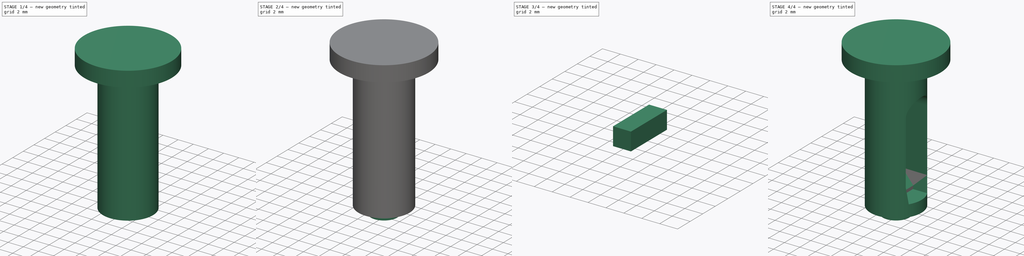
[diagram: build sequence overview — one tinted view per stage of 4, left to right]
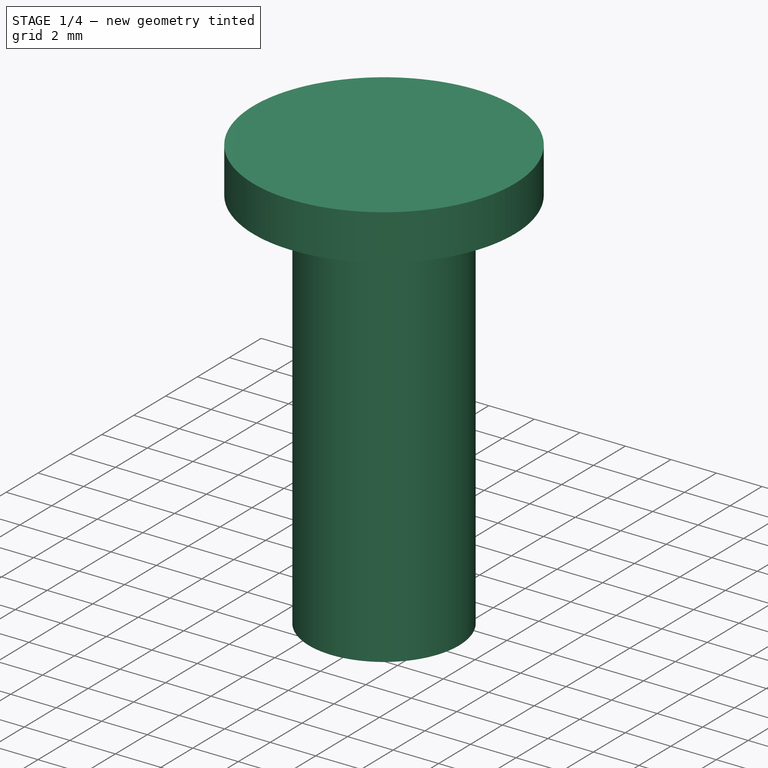
[diagram: stage 1 of 4 — iso view after this stage's code; geometry added in this stage tinted green]
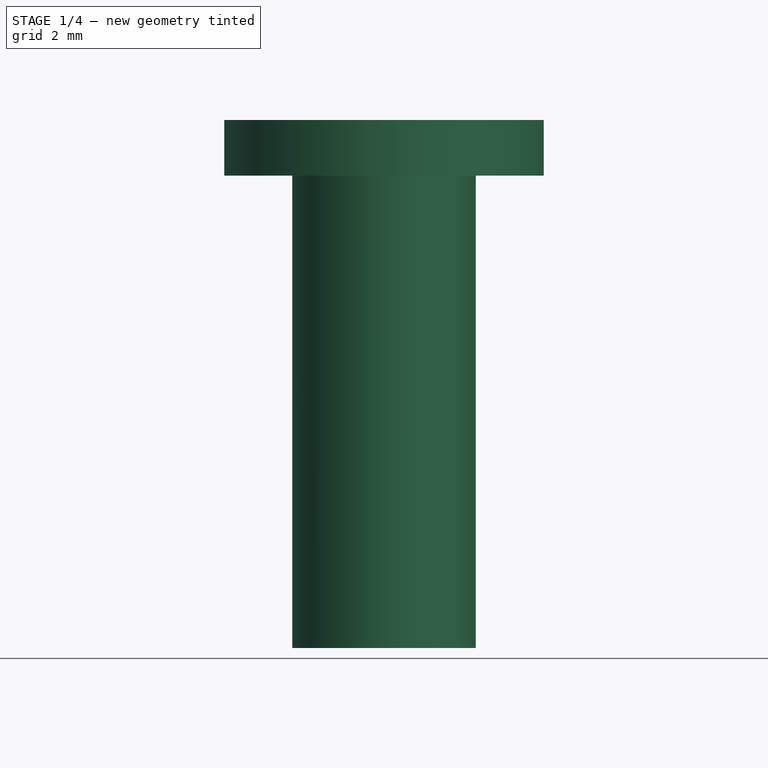
[diagram: stage 1 of 4 — front view after this stage's code; geometry added in this stage tinted green]
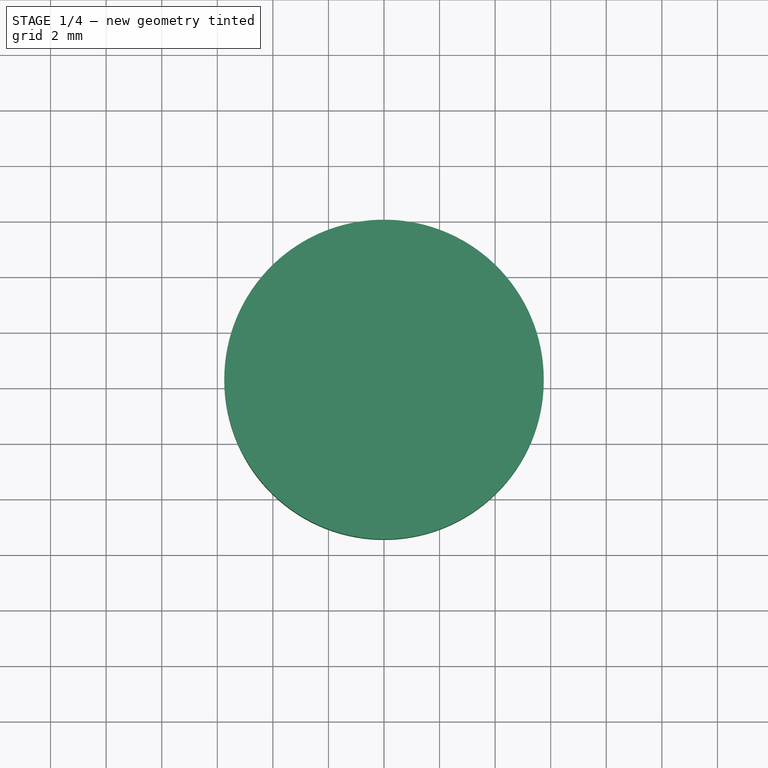
[diagram: stage 1 of 4 — top view after this stage's code; geometry added in this stage tinted green]
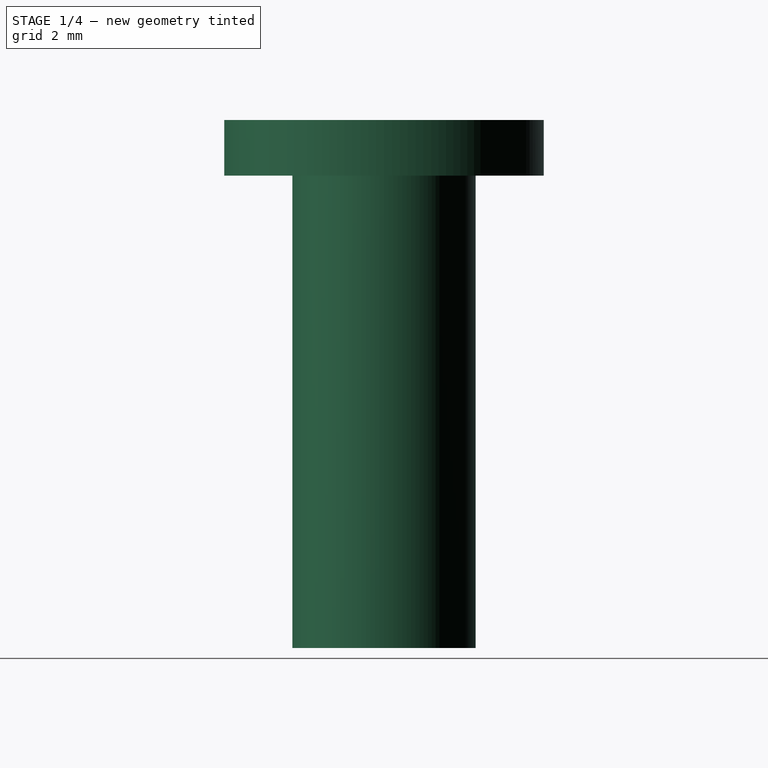
[diagram: stage 1 of 4 — right view after this stage's code; geometry added in this stage tinted green]
FCSTD DOCUMENT  (FreeCAD 0.19RUnknown)
Label: butto
License: All rights reserved
LicenseURL: http://en.wikipedia.org/wiki/All_rights_reserved
objects: Sketcher::SketchObject×7, Part::Extrusion×5, Part::MultiFuse×2, Part::Cut×1, Part::Chamfer×1
note: 16 computed .brp shape members not serialized (recipe doc carries the construction recipe); baked Part::Feature solids carry a one-line shape summary decoded from their .brp

FEATURE [Sketcher::SketchObject] Sketch001  label="slice2_e001"
  FullyConstrained = true
  MapMode = 5
  Placement = pos=(0,0,1) rot=(0,0,1;0rad)
  sketch-geometry (1):
    g0: Circle CenterX=0 CenterY=0 CenterZ=0 NormalX=0 NormalY=0 NormalZ=1 AngleXU=0 Radius=3.3
  constraints (2):
    c: Coincident(g0,g-1)
    c: Diameter(g0) = 6.6
FEATURE [Part::Extrusion] Extrude001  label="slice2_e"
  Base = -> Sketch001
  Dir = (0,0,1)
  DirMode = 2
  FaceMakerClass = Part::FaceMakerBullseye
  LengthFwd = 17
  LengthRev = 0
  Solid = true
  Symmetric = false
FEATURE [Sketcher::SketchObject] Sketch002
  FullyConstrained = true
  MapMode = 5
  Placement = pos=(0,0,18) rot=(0,0,1;0rad)
  sketch-geometry (1):
    g0: Circle CenterX=0 CenterY=0 CenterZ=0 NormalX=0 NormalY=0 NormalZ=1 AngleXU=0 Radius=5.75
  constraints (2):
    c: Coincident(g0,g-1)
    c: Diameter(g0) = 11.5
FEATURE [Part::Extrusion] Extrude002  label="slice3_e"
  Base = -> Sketch002
  Dir = (0,0,1)
  DirMode = 2
  FaceMakerClass = Part::FaceMakerBullseye
  LengthFwd = 2
  LengthRev = 0
  Solid = true
  Symmetric = false
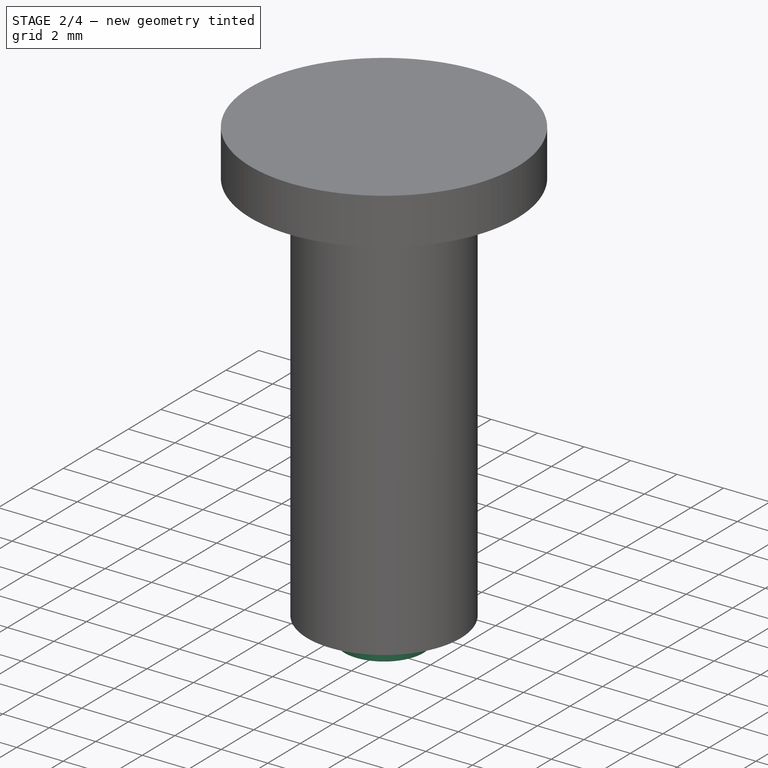
[diagram: stage 2 of 4 — iso view after this stage's code; geometry added in this stage tinted green]
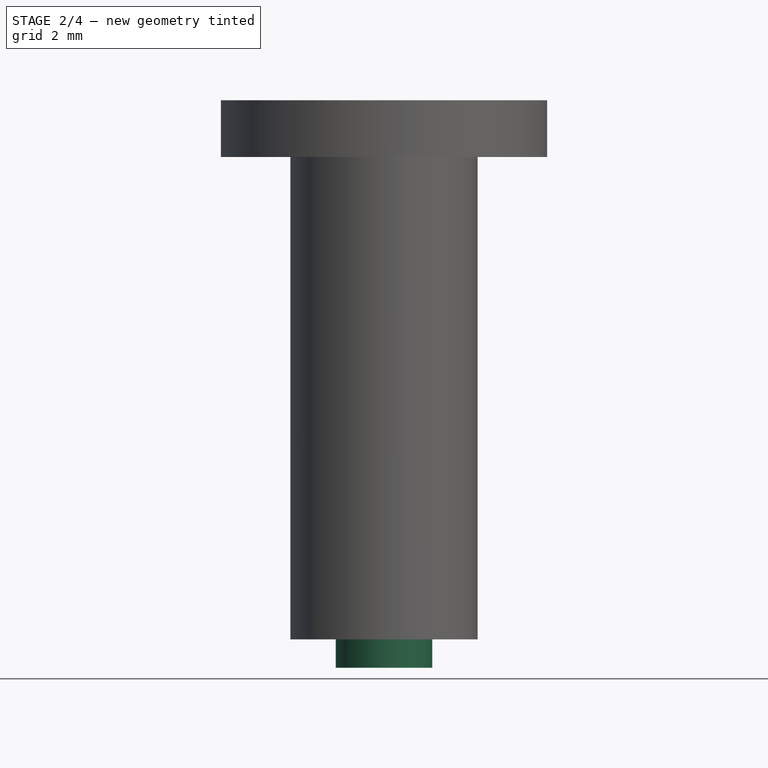
[diagram: stage 2 of 4 — front view after this stage's code; geometry added in this stage tinted green]
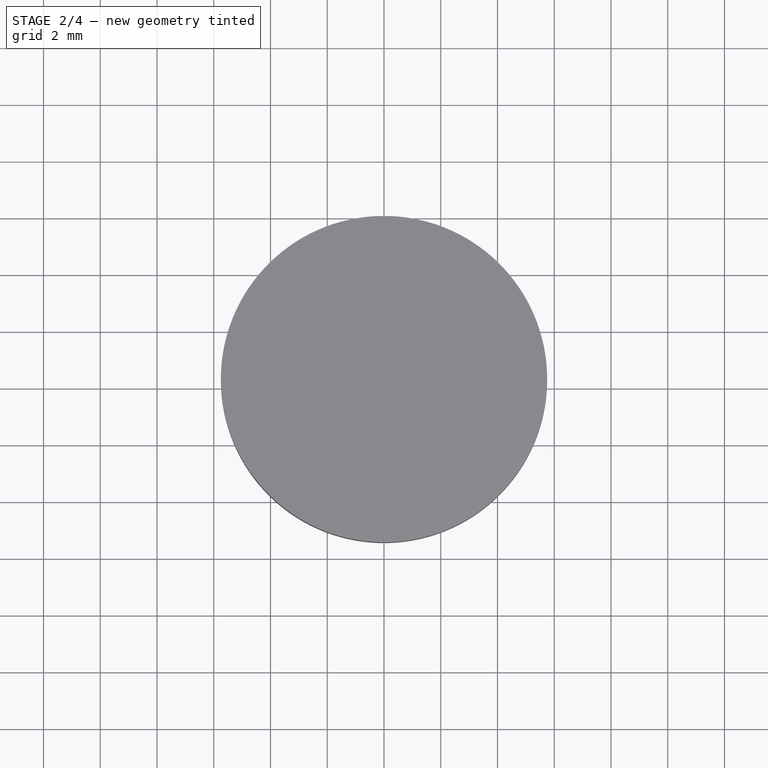
[diagram: stage 2 of 4 — top view after this stage's code; geometry added in this stage tinted green]
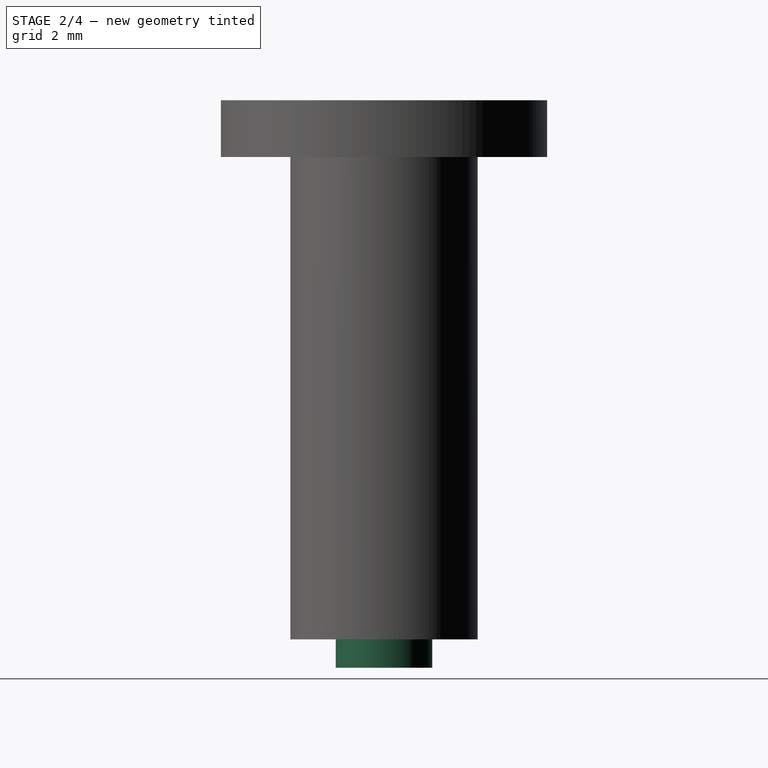
[diagram: stage 2 of 4 — right view after this stage's code; geometry added in this stage tinted green]
FEATURE [Sketcher::SketchObject] Sketch  label="slice1_s"
  FullyConstrained = true
  sketch-geometry (1):
    g0: Circle CenterX=0 CenterY=0 CenterZ=0 NormalX=0 NormalY=0 NormalZ=1 AngleXU=0 Radius=1.7
  constraints (2):
    c: Coincident(g0,g-1)
    c: Diameter(g0) = 3.4
FEATURE [Part::Extrusion] Extrude  label="slice1_e"
  Base = -> Sketch
  Dir = (0,0,1)
  DirMode = 2
  FaceMakerClass = Part::FaceMakerBullseye
  LengthFwd = 1
  LengthRev = 0
  Solid = true
  Symmetric = false
FEATURE [Sketcher::SketchObject] Sketch004  label="lock"
  FullyConstrained = false
  Placement = pos=(0,0,0) rot=(0.57735,0.57735,0.57735;2.0944rad)
  sketch-geometry (4):
    g0: LineSegment StartX=-2.06647 StartY=3.81631 StartZ=0 EndX=2.07519 EndY=3.81631 EndZ=0
    g1: LineSegment StartX=2.07519 StartY=3.81631 StartZ=0 EndX=2.07519 EndY=1.12959 EndZ=0
    g2: LineSegment StartX=2.07519 StartY=1.12959 StartZ=0 EndX=-2.06647 EndY=1.12959 EndZ=0
    g3: LineSegment StartX=-2.06647 StartY=1.12959 StartZ=0 EndX=-2.06647 EndY=3.81631 EndZ=0
  constraints (8):
    c: Coincident(g0,g1)
    c: Coincident(g1,g2)
    c: Coincident(g2,g3)
    c: Coincident(g3,g0)
    c: Horizontal(g0)
    c: Horizontal(g2)
    c: Vertical(g1)
    c: Vertical(g3)
FEATURE [Sketcher::SketchObject] Sketch005  label="dessin"
  FullyConstrained = false
  MapMode = 5
  Placement = pos=(0,0,20) rot=(0,0,1;0rad)
  sketch-geometry (20):
    g0: ArcOfCircle CenterX=0 CenterY=0 CenterZ=0 NormalX=0 NormalY=0 NormalZ=1 AngleXU=0 Radius=4.71434 StartAngle=0 EndAngle=3.14159
    g1-g9: Circle x9 (B-spline internal-alignment scaffolding for g10; pole/knot coordinates omitted)
    g10: BSplineCurve PolesCount=9 KnotsCount=7 Degree=3 IsPeriodic=0
    g11-g17: GeomPoint x7 (B-spline internal-alignment scaffolding for g10; pole/knot coordinates omitted)
    g18: Circle CenterX=-1.81786 CenterY=2.45526 CenterZ=0 NormalX=0 NormalY=0 NormalZ=1 AngleXU=0 Radius=0.65
    g19: Circle CenterX=1.81786 CenterY=2.45526 CenterZ=0 NormalX=0 NormalY=0 NormalZ=1 AngleXU=0 Radius=0.65
  constraints (14):
    c: Coincident(g0,g-1)
    c: PointOnObject(g0,g-1)
    c: PointOnObject(g0,g-1)
    c: Coincident(g10,g0)
    c: Weight(g1) = 1
    c: Equal(g1, g2-g5) x4
    c: PointOnObject(g5,g-2)
    c: Equal(g1, g6-g9) x4
    c: Coincident(g10,g0)
    c: InternalAlignment(g1-g9 -> g10) x9
    c: InternalAlignment(g11-g17 -> g10) x7
    c: Symmetric(g18,g19,g-2)
    c: Diameter(g18) = 1.3
    c: Diameter(g19) = 1.3
FEATURE [Part::MultiFuse] Fusion  label="barrel_u"
  Shapes = -> [Extrude,Extrude001,Extrude002]
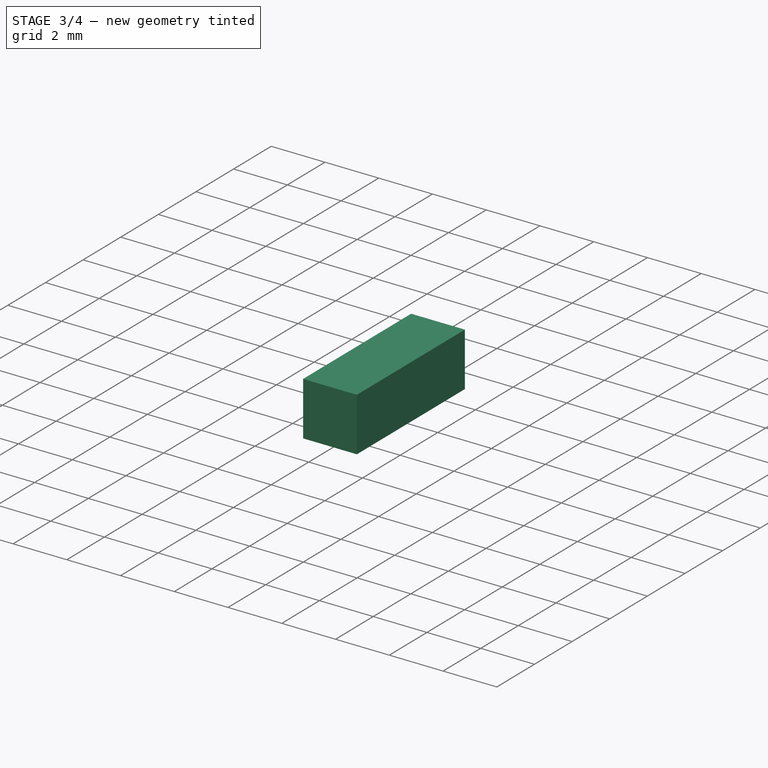
[diagram: stage 3 of 4 — iso view after this stage's code; geometry added in this stage tinted green]
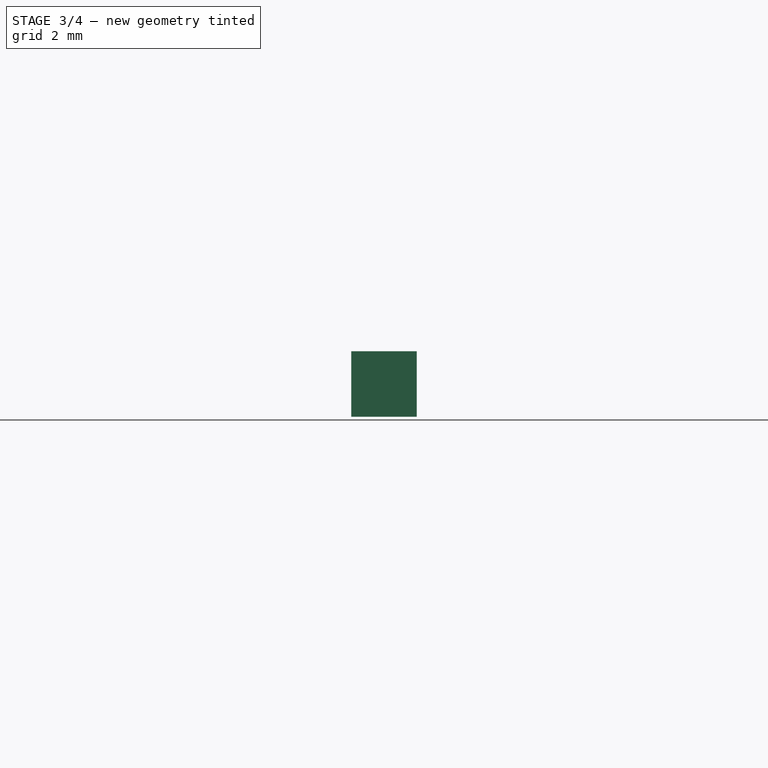
[diagram: stage 3 of 4 — front view after this stage's code; geometry added in this stage tinted green]
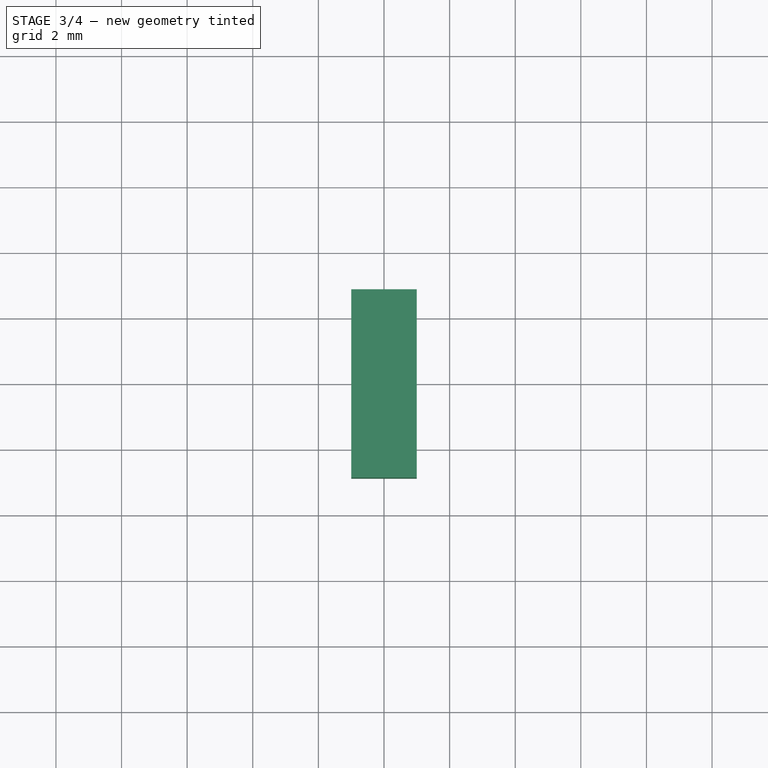
[diagram: stage 3 of 4 — top view after this stage's code; geometry added in this stage tinted green]
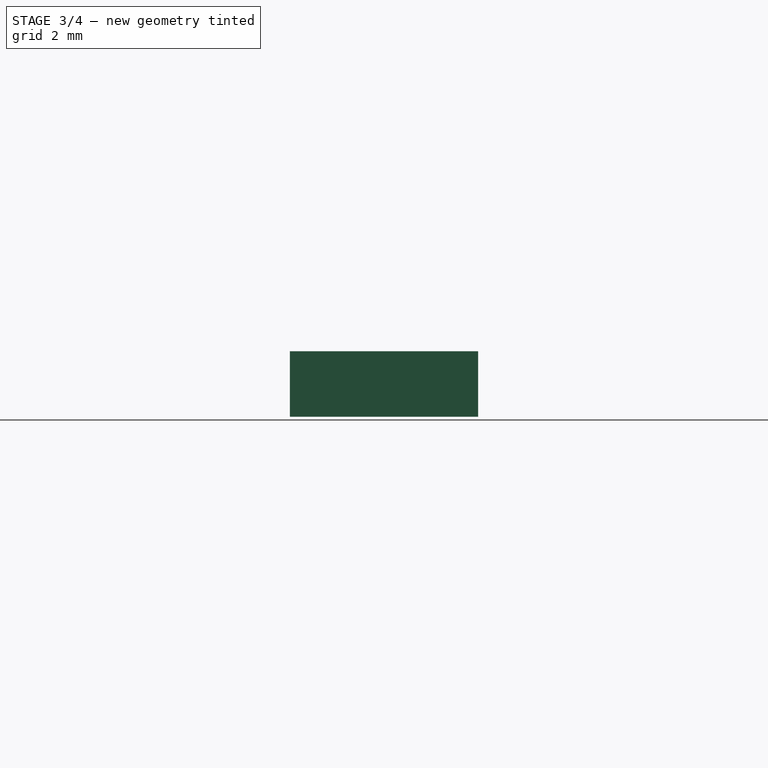
[diagram: stage 3 of 4 — right view after this stage's code; geometry added in this stage tinted green]
FEATURE [Sketcher::SketchObject] Sketch003  label="hole"
  ExternalGeometry = -> [Extrude002]
  FullyConstrained = false
  Placement = pos=(0,0,0) rot=(0.57735,0.57735,0.57735;2.0944rad)
  sketch-geometry (13):
    g0: LineSegment StartX=0 StartY=1.5 StartZ=0 EndX=0.0017548 EndY=2.5 EndZ=0
    g1: LineSegment StartX=0 StartY=2.5 StartZ=0 EndX=0 EndY=8.5 EndZ=0
    g2: LineSegment StartX=0 StartY=8.5 StartZ=0 EndX=0 EndY=14.5 EndZ=0
    g3: ArcOfCircle CenterX=0 CenterY=4.47504 CenterZ=0 NormalX=0 NormalY=0 NormalZ=1 AngleXU=0 Radius=1.97504 StartAngle=3.13527 EndAngle=6.27686
    g4: LineSegment StartX=-1.975 StartY=8.5 StartZ=0 EndX=-1.975 EndY=4.48753 EndZ=0
    g5: LineSegment StartX=1.975 StartY=8.5 StartZ=0 EndX=1.975 EndY=4.46255 EndZ=0
    g6: ArcOfCircle CenterX=0 CenterY=12.525 CenterZ=0 NormalX=0 NormalY=0 NormalZ=1 AngleXU=0 Radius=1.975 StartAngle=-6.39e-14 EndAngle=3.14159
    g7: LineSegment StartX=-1.975 StartY=12.525 StartZ=0 EndX=-1.975 EndY=8.5 EndZ=0
    g8: LineSegment StartX=1.975 StartY=12.525 StartZ=0 EndX=1.975 EndY=8.5 EndZ=0
    g9: LineSegment StartX=-1.975 StartY=4.48753 StartZ=0 EndX=-1.69567 EndY=2.5 EndZ=0
    g10: LineSegment StartX=-1.69567 StartY=2.5 StartZ=0 EndX=0.0017548 EndY=2.5 EndZ=0
    g11: LineSegment StartX=0.0017548 StartY=2.5 StartZ=0 EndX=1.69918 EndY=2.5 EndZ=0
    g12: LineSegment StartX=1.975 StartY=4.46255 StartZ=0 EndX=1.69918 EndY=2.5 EndZ=0
  constraints (36):
    c: Coincident(g9,g4)
    c: Coincident(g10,g9)
    c: Horizontal(g10)
    c: Coincident(g0,g10)
    c: Coincident(g11,g10)
    c: Horizontal(g11)
    c: Tangent(g11,g3)
    c: Coincident(g12,g5)
    c: Coincident(g12,g11)
    c: Angle(g12,g11) = 1.71042
    c: Vertical(g5)
    c: Coincident(g5,g8)
    c: DistanceX(g4,g5) = 3.95
    c: Coincident(g4,g7)
    c: Vertical(g7)
    c: Vertical(g8)
    c: Coincident(g7,g6)
    c: Coincident(g6,g8)
    c: PointOnObject(g2,g6)
    c: PointOnObject(g6,g2)
    c: Vertical(g2)
    c: Angle(g10,g9) = 1.71042
    c: Coincident(g3,g4)
    c: Vertical(g4)
    c: DistanceY(g0,g10) = 1
    c: DistanceY(g10,g2) = 12
    c: DistanceY(g-1,g0) = 1.5
    c: Coincident(g1,g2)
    c: Vertical(g1)
    c: PointOnObject(g1,g-2)
    c: PointOnObject(g3,g1)
    c: Equal(g10,g11)
    c: Symmetric(g4,g5,g3)
    c: Symmetric(g5,g4,g1)
    c: Symmetric(g6,g6,g6)
    c: Coincident(g5,g3)
FEATURE [Part::Extrusion] Extrude003  label="hole_e"
  Base = -> Sketch003
  Dir = (1,0,0)
  DirMode = 2
  FaceMakerClass = Part::FaceMakerBullseye
  LengthFwd = 15
  LengthRev = 1
  Solid = true
  Symmetric = true
FEATURE [Part::Cut] Cut  label="cyllinder_cut"
  Base = -> Fusion
  Tool = -> Extrude003
FEATURE [Sketcher::SketchObject] Sketch006  label="pen_s"
  ExternalGeometry = -> [Cut]
  FullyConstrained = false
  Placement = pos=(0,0,0) rot=(0.57735,0.57735,0.57735;2.0944rad)
  sketch-geometry (4):
    g0: LineSegment StartX=-2.87054 StartY=2.5 StartZ=0 EndX=2.87054 EndY=2.5 EndZ=0
    g1: LineSegment StartX=-2.87054 StartY=2.5 StartZ=0 EndX=-2.87054 EndY=4.5 EndZ=0
    g2: LineSegment StartX=-2.87054 StartY=4.5 StartZ=0 EndX=2.87054 EndY=4.5 EndZ=0
    g3: LineSegment StartX=2.87054 StartY=4.5 StartZ=0 EndX=2.87054 EndY=2.5 EndZ=0
  constraints (11):
    c: Horizontal(g0)
    c: DistanceY(g-1,g-3) = 2.5
    c: Symmetric(g0,g0,g-3)
    c: Coincident(g1,g0)
    c: Vertical(g1)
    c: Coincident(g2,g1)
    c: Horizontal(g2)
    c: Coincident(g3,g2)
    c: Coincident(g3,g0)
    c: Vertical(g3)
    c: DistanceY(g3,g3) = 2
FEATURE [Part::Extrusion] Extrude004
  Base = -> Sketch006
  Dir = (1,0,0)
  DirMode = 2
  FaceMakerClass = Part::FaceMakerBullseye
  LengthFwd = 2
  LengthRev = 0
  Solid = true
  Symmetric = true
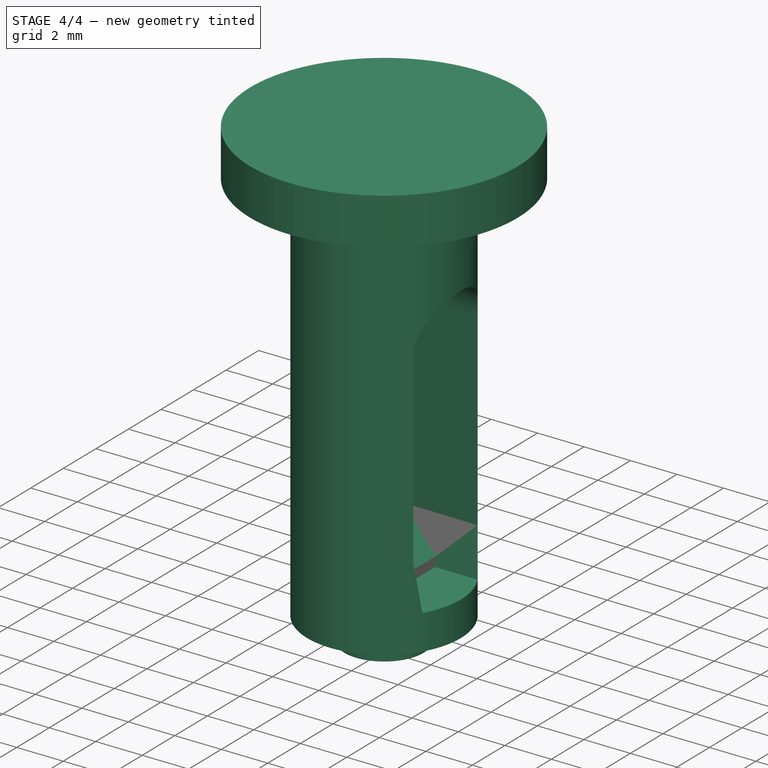
[diagram: stage 4 of 4 — iso view after this stage's code; geometry added in this stage tinted green]
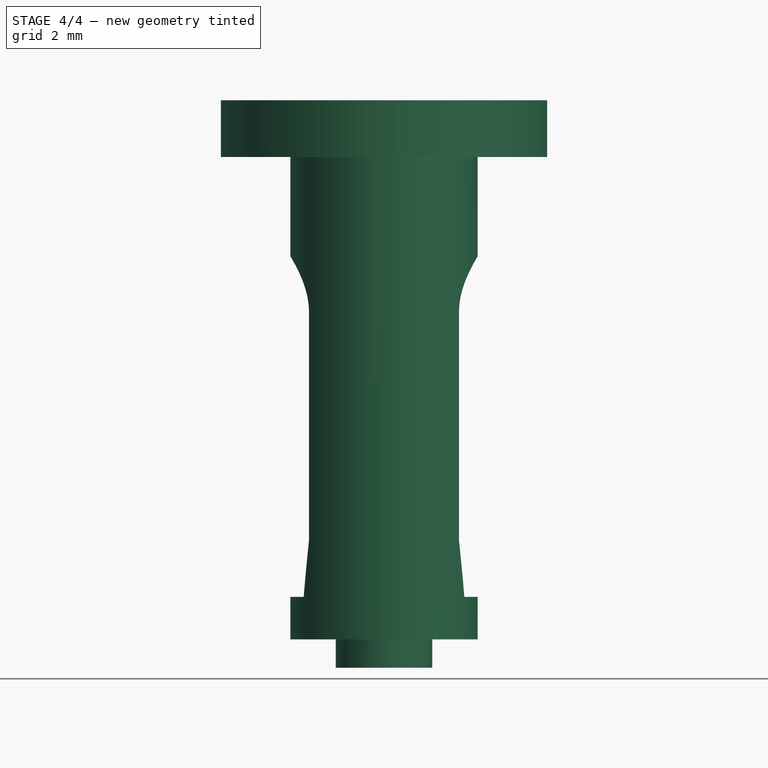
[diagram: stage 4 of 4 — front view after this stage's code; geometry added in this stage tinted green]
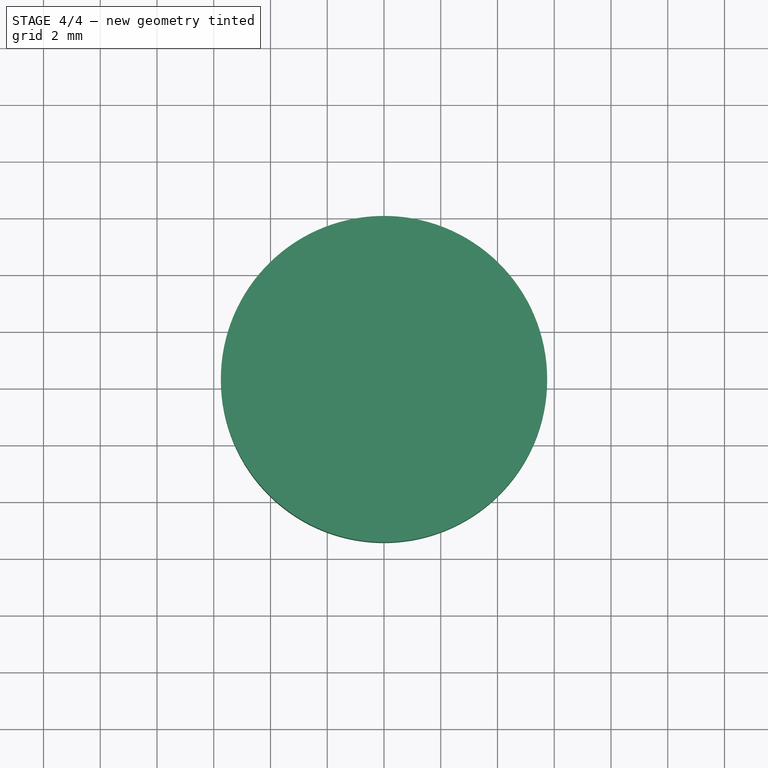
[diagram: stage 4 of 4 — top view after this stage's code; geometry added in this stage tinted green]
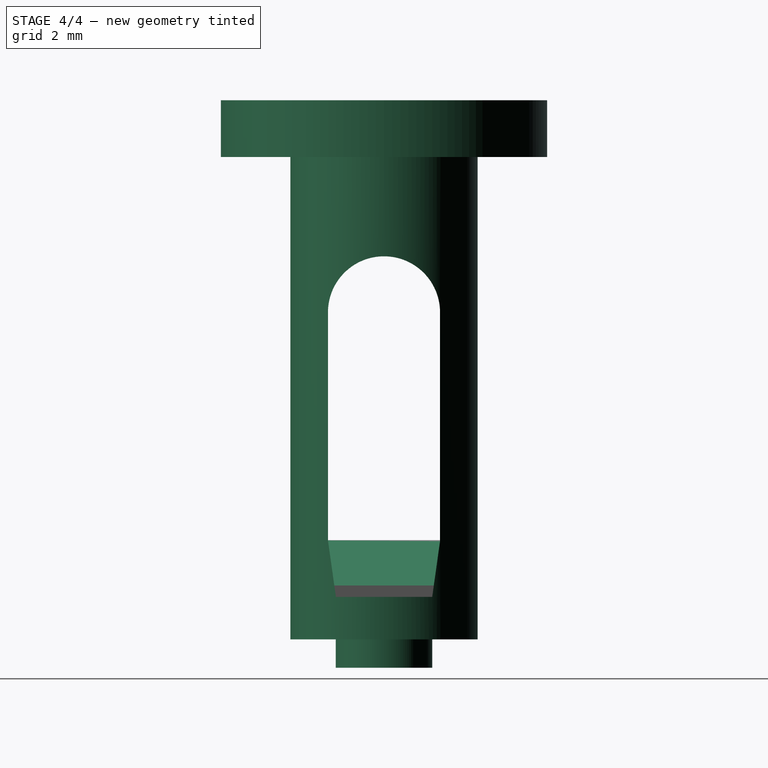
[diagram: stage 4 of 4 — right view after this stage's code; geometry added in this stage tinted green]
FEATURE [Part::Chamfer] Chamfer
  Base = -> Extrude004
  Edges = 1 edges r=1.6: [Edge10]
FEATURE [Part::MultiFuse] Fusion001  label="everything"
  Shapes = -> [Cut,Chamfer]
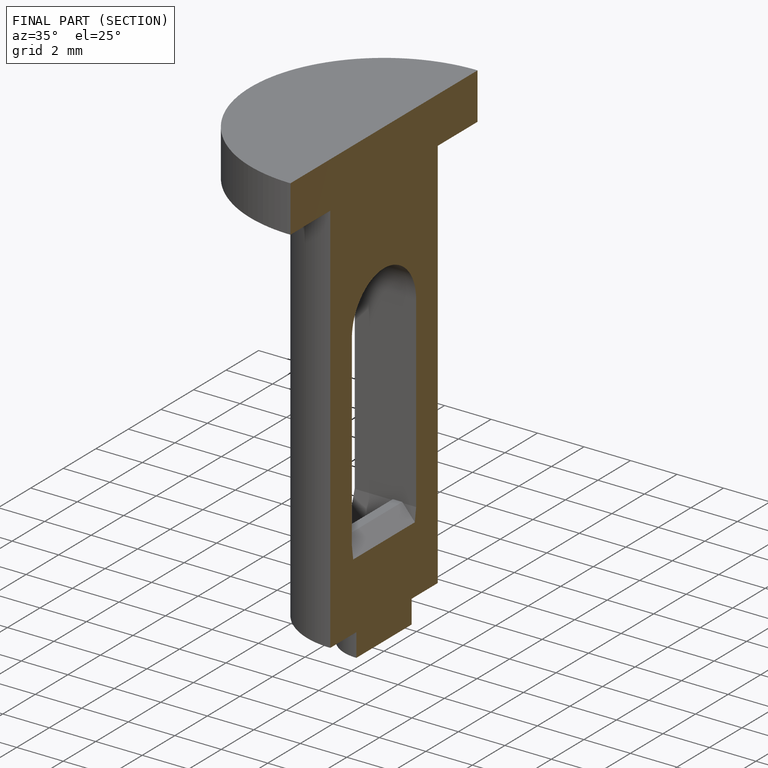
[diagram: finished part — half-section view (interior)]
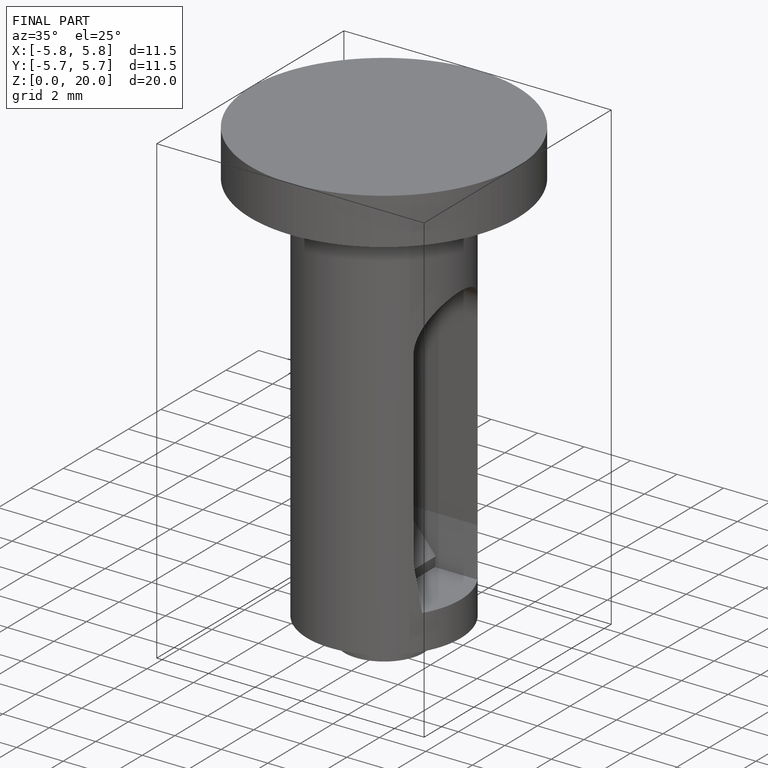
[diagram: finished part — iso view with bounding-box wireframe]
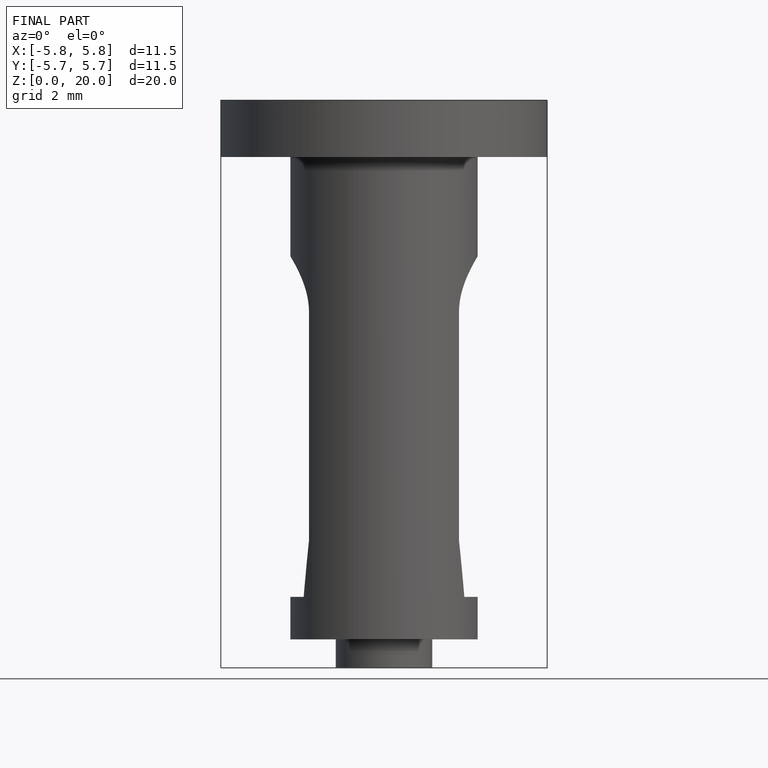
[diagram: finished part — front view with bounding-box wireframe]
